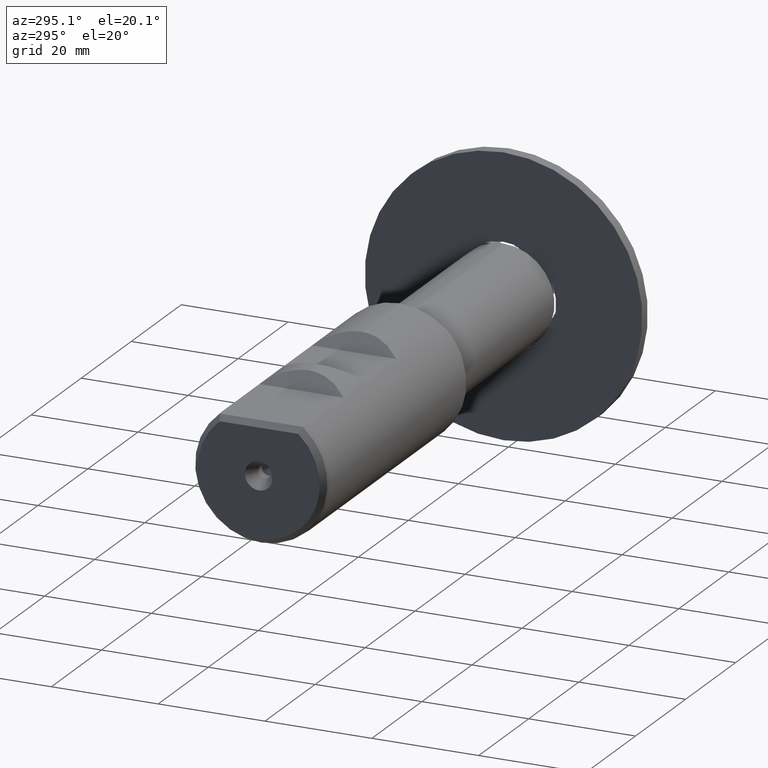
[diagram: clean part render]
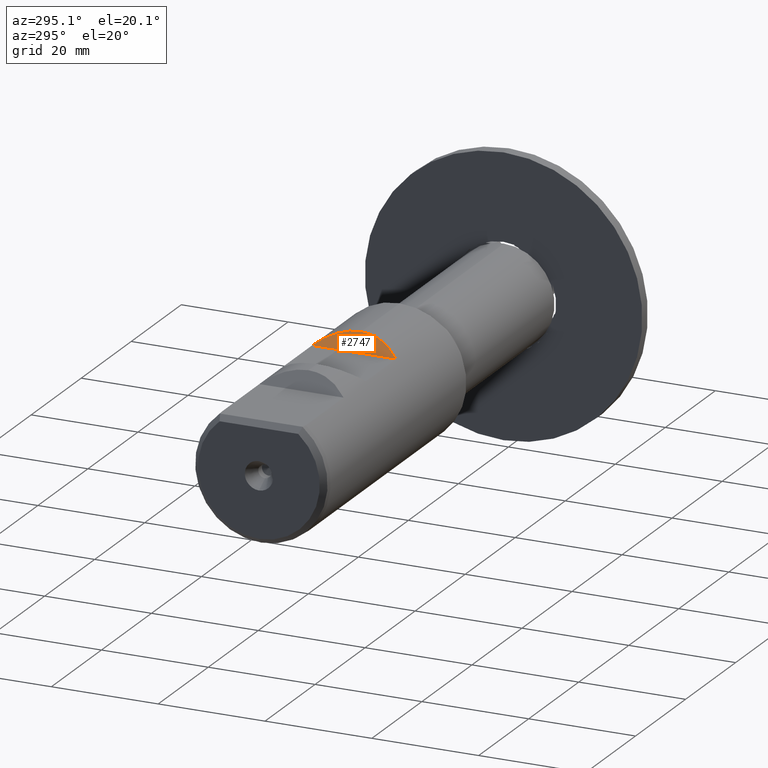
[diagram: same view with one face highlighted and labeled with its STEP entity id]
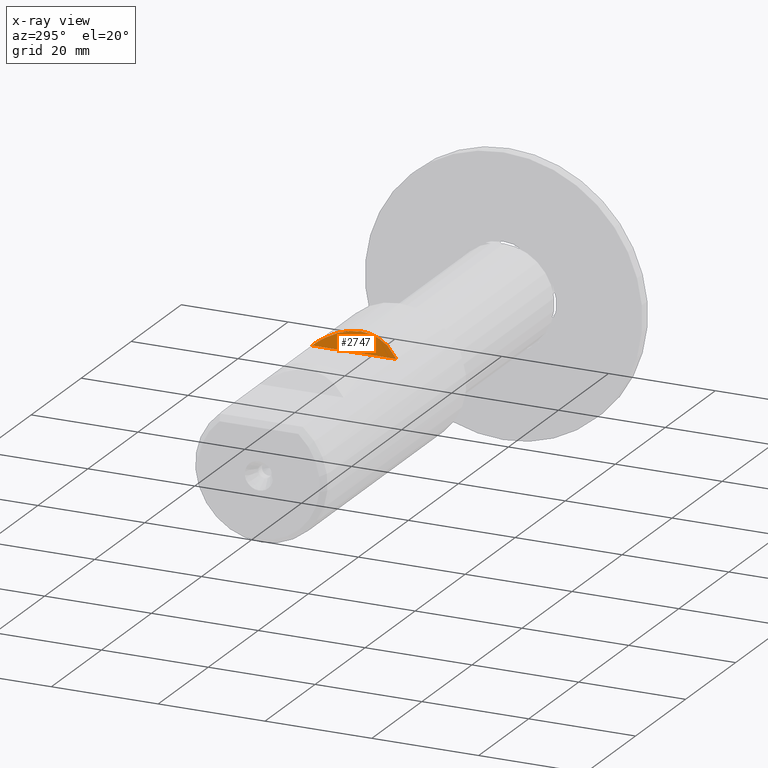
[diagram: x-ray of the same camera — body ghosted, the highlighted face saturated]
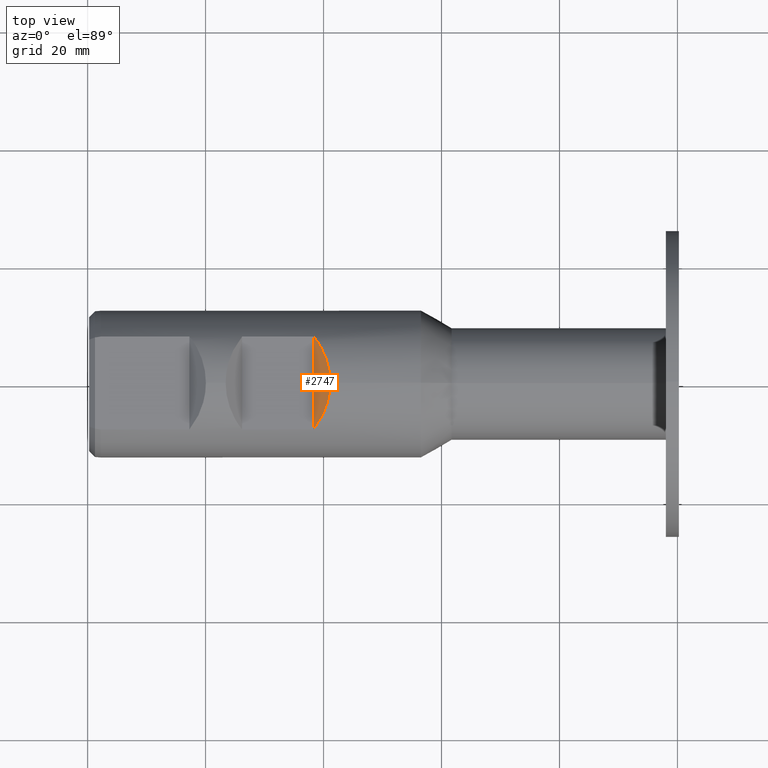
[diagram: same view with one face highlighted and labeled with its STEP entity id]
A machine part, auxiliary view. The second image highlights one B-rep face of the part: STEP entity #2747.
The next image is the same camera in x-ray: the body ghosted, the highlighted face saturated — about 0% of this face is hidden behind the body in this view.
A second angle (top view) of the same face is appended — the face is thin or edge-on in the first view.
In plain terms, the highlighted planar face has unit normal (0.7071, 0, -0.7071).
Its self-contained STEP definition (entity closure, byte-faithful):
#17 = CARTESIAN_POINT ( 'NONE',  ( -58.89972633000000002, -1.165248077897811533E-14, 12.50000000000000000 ) ) ;
#24 = LINE ( 'NONE', #3264, #2603 ) ;
#28 = EDGE_CURVE ( 'NONE', #2142, #863, #2602, .T. ) ;
#217 = EDGE_LOOP ( 'NONE', ( #2258, #3921, #4057 ) ) ;
#327 = CARTESIAN_POINT ( 'NONE',  ( -59.87037292374866837, 5.633480855672100773, 11.52935340625133165 ) ) ;
#863 = VERTEX_POINT ( 'NONE', #2768 ) ;
#915 = DIRECTION ( 'NONE',  ( 0.7071067811865484609, 0.0000000000000000000, -0.7071067811865466846 ) ) ;
#971 = DIRECTION ( 'NONE',  ( -0.0000000000000000000, 1.000000000000000000, -0.0000000000000000000 ) ) ;
#1219 = CARTESIAN_POINT ( 'NONE',  ( -61.69972632999999718, -7.884161337770829725, 9.700000000000001066 ) ) ;
#1288 = CARTESIAN_POINT ( 'NONE',  ( -58.89972633000000002, -1.165248077897811533E-14, 12.50000000000000000 ) ) ;
#1548 =( BOUNDED_CURVE ( )  B_SPLINE_CURVE ( 3, ( #3754, #4081, #2031, #17 ),
 .UNSPECIFIED., .F., .F. ) 
 B_SPLINE_CURVE_WITH_KNOTS ( ( 4, 4 ),
 ( 2.459095336313821267, 3.141592653589793116 ),
 .UNSPECIFIED. ) 
 CURVE ( )  GEOMETRIC_REPRESENTATION_ITEM ( )  RATIONAL_B_SPLINE_CURVE ( ( 1.000000000000000000, 0.9615583461007863875, 0.9615583461007863875, 1.000000000000000000 ) ) 
 REPRESENTATION_ITEM ( '' )  );
#1748 = EDGE_CURVE ( 'NONE', #2644, #2142, #1548, .T. ) ;
#1952 = AXIS2_PLACEMENT_3D ( 'NONE', #3685, #915, #2253 ) ;
#2000 = CARTESIAN_POINT ( 'NONE',  ( -58.89972633000000002, -1.165248077897811533E-14, 12.50000000000000000 ) ) ;
#2031 = CARTESIAN_POINT ( 'NONE',  ( -58.89972633000000002, -2.900361446003486332, 12.50000000000000178 ) ) ;
#2142 = VERTEX_POINT ( 'NONE', #2000 ) ;
#2244 = PLANE ( 'NONE',  #1952 ) ;
#2253 = DIRECTION ( 'NONE',  ( -0.7071067811865465735, 0.0000000000000000000, -0.7071067811865483499 ) ) ;
#2258 = ORIENTED_EDGE ( 'NONE', *, *, #1748, .T. ) ;
#2312 = CARTESIAN_POINT ( 'NONE',  ( -58.89972633000000002, 2.900361446003460575, 12.50000000000000178 ) ) ;
#2590 = FACE_OUTER_BOUND ( 'NONE', #217, .T. ) ;
#2602 =( BOUNDED_CURVE ( )  B_SPLINE_CURVE ( 3, ( #1288, #2312, #327, #2670 ),
 .UNSPECIFIED., .F., .F. ) 
 B_SPLINE_CURVE_WITH_KNOTS ( ( 4, 4 ),
 ( 3.141592653589793116, 3.824089970865764965 ),
 .UNSPECIFIED. ) 
 CURVE ( )  GEOMETRIC_REPRESENTATION_ITEM ( )  RATIONAL_B_SPLINE_CURVE ( ( 1.000000000000000000, 0.9615583461007863875, 0.9615583461007863875, 1.000000000000000000 ) ) 
 REPRESENTATION_ITEM ( '' )  );
#2603 = VECTOR ( 'NONE', #971, 1000.000000000000000 ) ;
#2644 = VERTEX_POINT ( 'NONE', #1219 ) ;
#2670 = CARTESIAN_POINT ( 'NONE',  ( -61.69972632999999718, 7.884161337770794198, 9.700000000000001066 ) ) ;
#2747 = ADVANCED_FACE ( 'NONE', ( #2590 ), #2244, .F. ) ;
#2768 = CARTESIAN_POINT ( 'NONE',  ( -61.69972632999999718, 7.884161337770794198, 9.700000000000001066 ) ) ;
#3264 = CARTESIAN_POINT ( 'NONE',  ( -61.69972632999999718, -12.50000000000000000, 9.700000000000001066 ) ) ;
#3685 = CARTESIAN_POINT ( 'NONE',  ( -58.12968903057124948, -12.50000000000000000, 13.27003729942875232 ) ) ;
#3754 = CARTESIAN_POINT ( 'NONE',  ( -61.69972632999999718, -7.884161337770829725, 9.700000000000001066 ) ) ;
#3921 = ORIENTED_EDGE ( 'NONE', *, *, #28, .T. ) ;
#4006 = EDGE_CURVE ( 'NONE', #2644, #863, #24, .T. ) ;
#4057 = ORIENTED_EDGE ( 'NONE', *, *, #4006, .F. ) ;
#4081 = CARTESIAN_POINT ( 'NONE',  ( -59.87037292374867548, -5.633480855672125642, 11.52935340625132987 ) ) ;